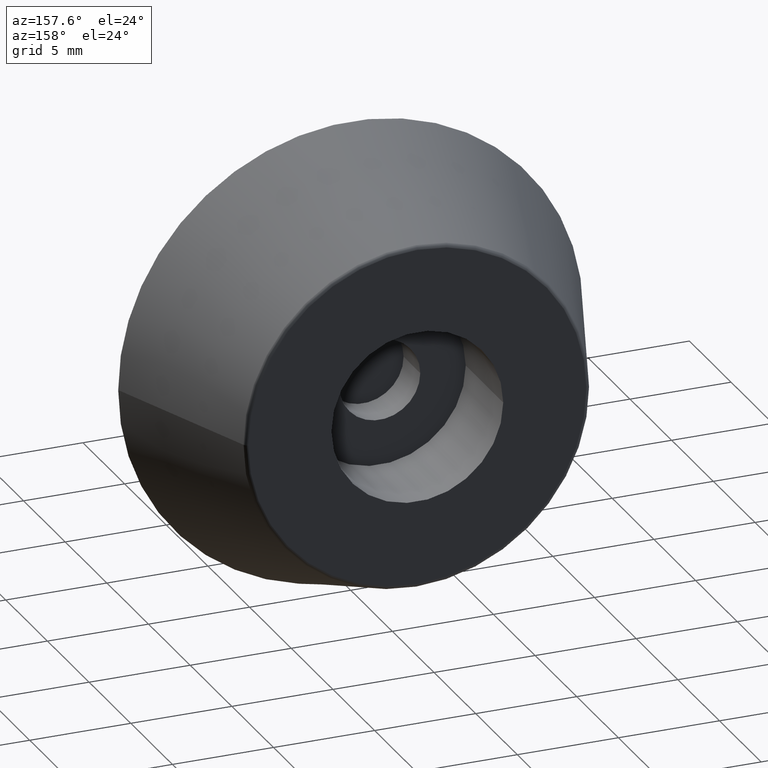
[diagram: clean part render]
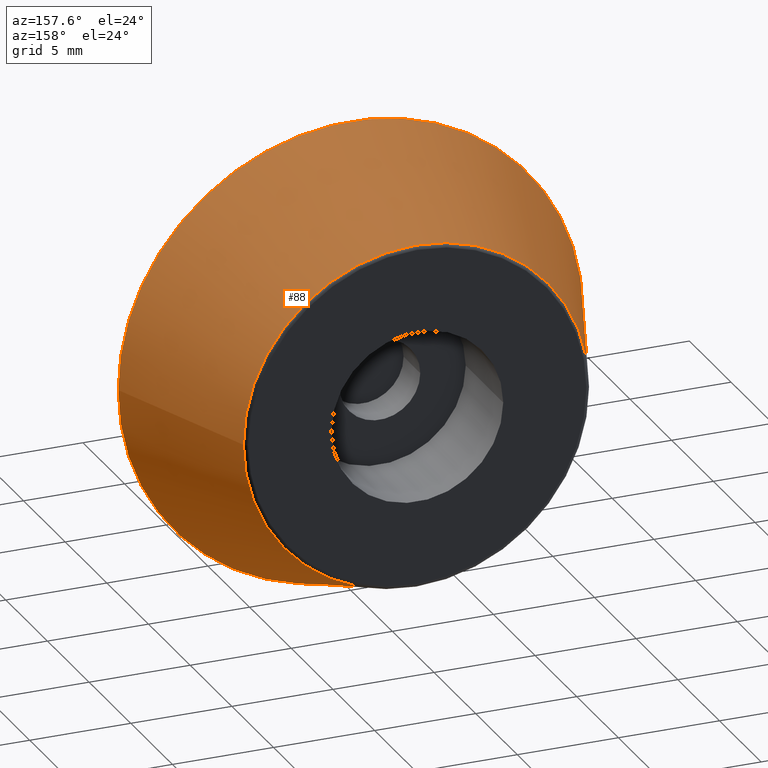
[diagram: same view with one face highlighted and labeled with its STEP entity id]
A machine part, auxiliary view. The second image highlights one B-rep face of the part: STEP entity #88.
In plain terms, the highlighted conical surface has half-angle 20.556 deg.
Its self-contained STEP definition (entity closure, byte-faithful):
#17=CONICAL_SURFACE('',#101,11.5,20.5560452195835);
#24=FACE_BOUND('',#41,.T.);
#30=FACE_OUTER_BOUND('',#40,.T.);
#40=EDGE_LOOP('',(#75));
#41=EDGE_LOOP('',(#76));
#51=CIRCLE('',#98,8.54866574188087);
#53=CIRCLE('',#102,11.5);
#58=VERTEX_POINT('',#147);
#60=VERTEX_POINT('',#153);
#65=EDGE_CURVE('',#58,#58,#51,.T.);
#67=EDGE_CURVE('',#60,#60,#53,.T.);
#75=ORIENTED_EDGE('',*,*,#67,.T.);
#76=ORIENTED_EDGE('',*,*,#65,.F.);
#88=ADVANCED_FACE('',(#30,#24),#17,.T.);
#98=AXIS2_PLACEMENT_3D('',#148,#117,#118);
#101=AXIS2_PLACEMENT_3D('',#152,#123,#124);
#102=AXIS2_PLACEMENT_3D('',#154,#125,#126);
#117=DIRECTION('center_axis',(0.,1.,0.));
#118=DIRECTION('ref_axis',(-1.,0.,1.22464679914735E-16));
#123=DIRECTION('center_axis',(0.,-1.,0.));
#124=DIRECTION('ref_axis',(1.,0.,0.));
#125=DIRECTION('center_axis',(0.,1.,0.));
#126=DIRECTION('ref_axis',(1.,0.,0.));
#147=CARTESIAN_POINT('',(8.54866574188087,7.87022468831768,-2.09381922755501E-15));
#148=CARTESIAN_POINT('Origin',(0.,7.87022468831768,1.23259516440783E-31));
#152=CARTESIAN_POINT('Origin',(0.,0.,0.));
#153=CARTESIAN_POINT('',(11.5,0.,0.));
#154=CARTESIAN_POINT('Origin',(0.,0.,0.));